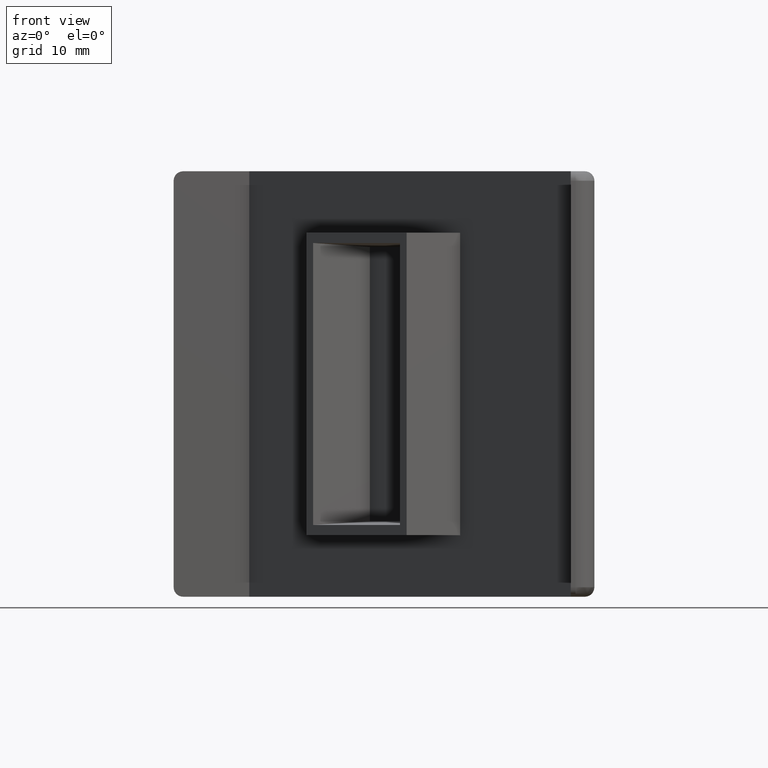
[diagram: clean part render]
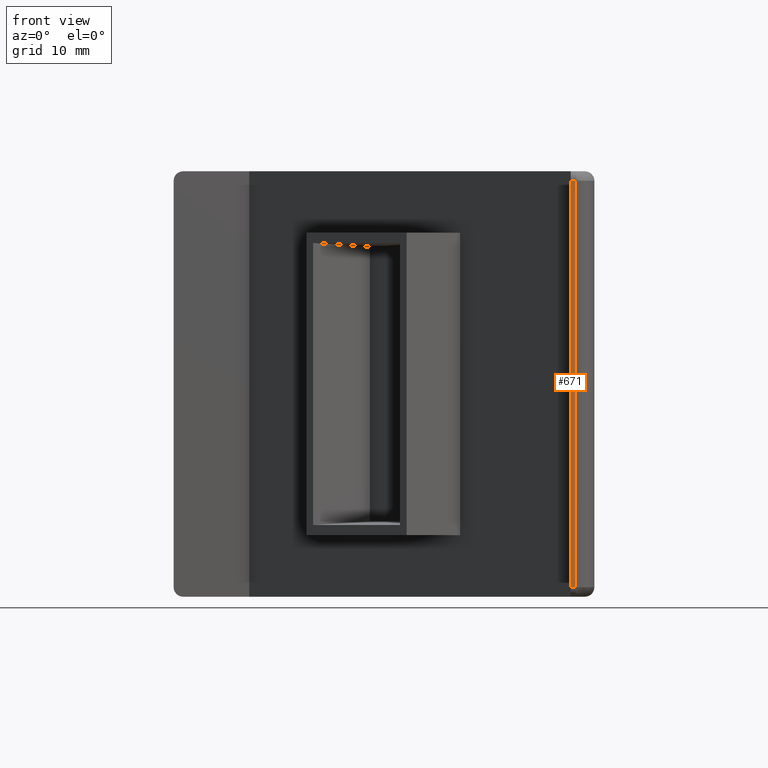
[diagram: same view with one face highlighted and labeled with its STEP entity id]
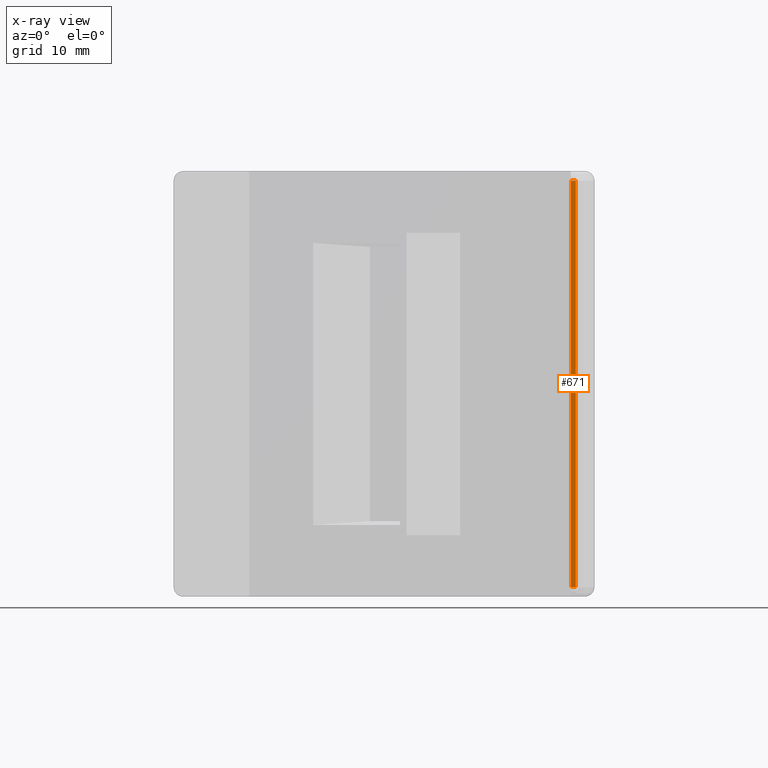
[diagram: x-ray of the same camera — body ghosted, the highlighted face saturated]
A machine part, front view. The second image highlights one B-rep face of the part: STEP entity #671.
The next image is the same camera in x-ray: the body ghosted, the highlighted face saturated — about 0% of this face is hidden behind the body in this view.
In plain terms, the highlighted planar face has unit normal (0, 1, 0).
Its self-contained STEP definition (entity closure, byte-faithful):
#51=FACE_OUTER_BOUND('',#94,.T.);
#94=EDGE_LOOP('',(#506,#507,#508,#509));
#164=LINE('',#1090,#226);
#165=LINE('',#1096,#227);
#166=LINE('',#1097,#228);
#167=LINE('',#1098,#229);
#226=VECTOR('',#856,43.);
#227=VECTOR('',#863,43.);
#228=VECTOR('',#864,0.499999999999998);
#229=VECTOR('',#865,0.499999999999998);
#328=VERTEX_POINT('',#1088);
#329=VERTEX_POINT('',#1089);
#330=VERTEX_POINT('',#1094);
#331=VERTEX_POINT('',#1095);
#394=EDGE_CURVE('',#328,#329,#164,.T.);
#397=EDGE_CURVE('',#330,#331,#165,.T.);
#398=EDGE_CURVE('',#331,#328,#166,.T.);
#399=EDGE_CURVE('',#329,#330,#167,.T.);
#506=ORIENTED_EDGE('',*,*,#397,.T.);
#507=ORIENTED_EDGE('',*,*,#398,.T.);
#508=ORIENTED_EDGE('',*,*,#394,.T.);
#509=ORIENTED_EDGE('',*,*,#399,.T.);
#651=PLANE('',#727);
#671=ADVANCED_FACE('',(#51),#651,.F.);
#727=AXIS2_PLACEMENT_3D('',#1093,#861,#862);
#856=DIRECTION('',(0.,0.,-1.));
#861=DIRECTION('center_axis',(0.,1.,0.));
#862=DIRECTION('ref_axis',(0.,0.,1.));
#863=DIRECTION('',(0.,0.,1.));
#864=DIRECTION('',(-1.,0.,0.));
#865=DIRECTION('',(1.,0.,0.));
#1088=CARTESIAN_POINT('',(42.,0.,21.5));
#1089=CARTESIAN_POINT('',(42.,0.,-21.5));
#1090=CARTESIAN_POINT('',(42.,0.,22.5));
#1093=CARTESIAN_POINT('Origin',(42.,0.,22.5));
#1094=CARTESIAN_POINT('',(42.5,0.,-21.5));
#1095=CARTESIAN_POINT('',(42.5,0.,21.5));
#1096=CARTESIAN_POINT('',(42.5,0.,22.5));
#1097=CARTESIAN_POINT('',(42.,0.,21.5));
#1098=CARTESIAN_POINT('',(42.,0.,-21.5));